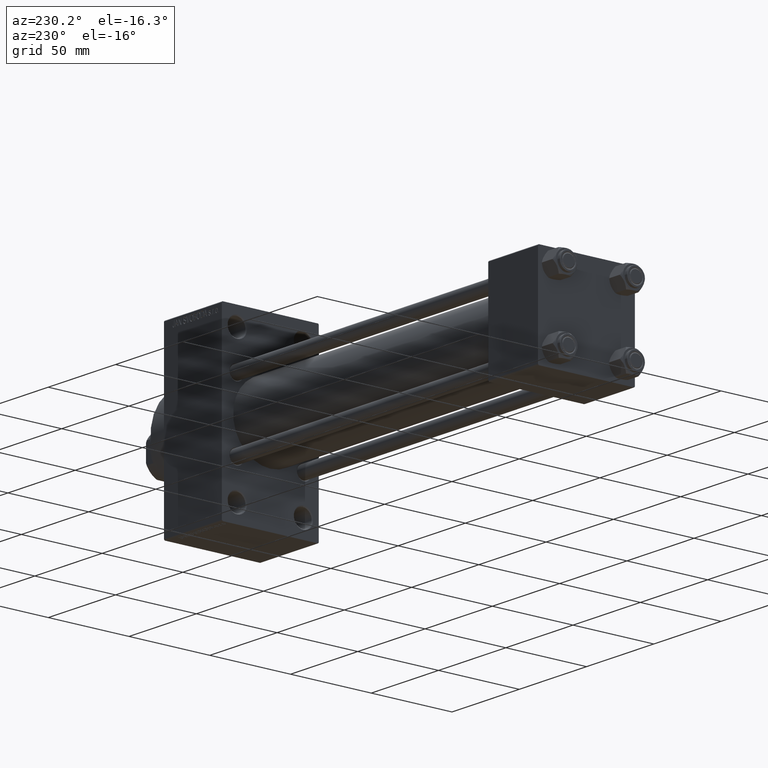
[diagram: clean part render]
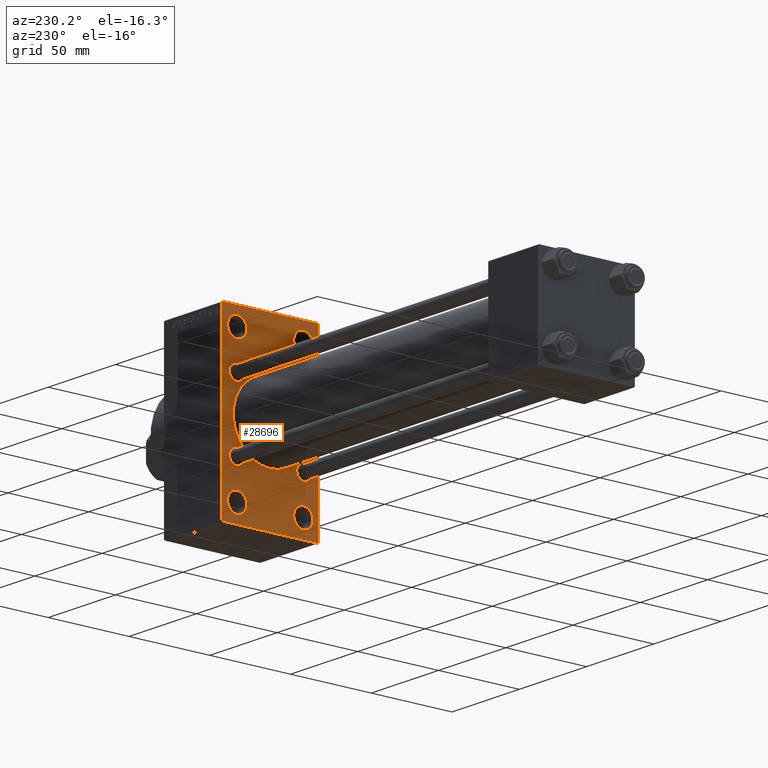
[diagram: same view with one face highlighted and labeled with its STEP entity id]
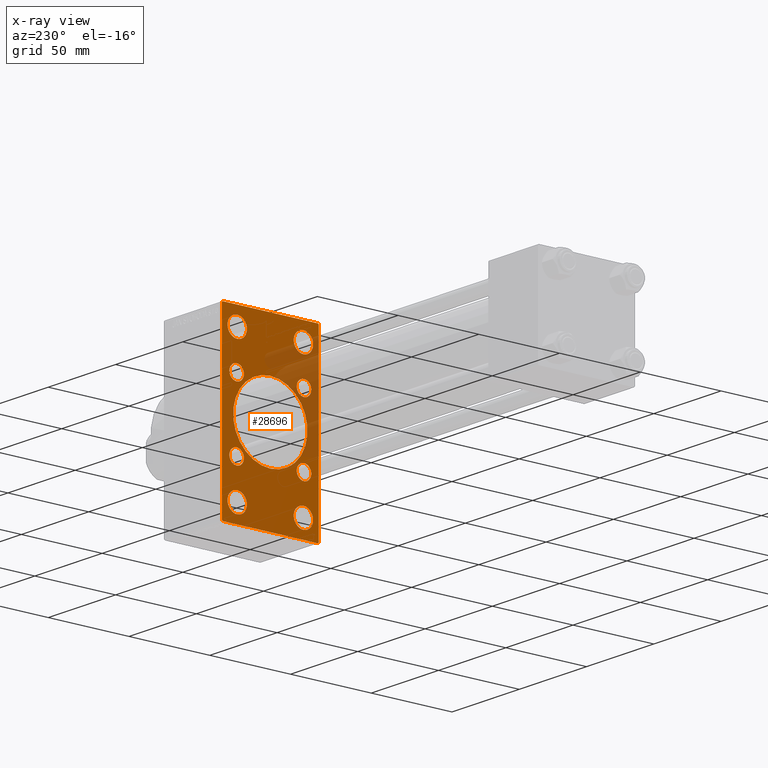
[diagram: x-ray of the same camera — body ghosted, the highlighted face saturated]
A machine part, auxiliary view. The second image highlights one B-rep face of the part: STEP entity #28696.
The next image is the same camera in x-ray: the body ghosted, the highlighted face saturated — about 19% of this face is hidden behind the body in this view.
In plain terms, the highlighted planar face has unit normal (-1, 0, 0).
Its self-contained STEP definition (entity closure, byte-faithful):
#89 = VECTOR ( 'NONE', #35444, 1000.000000000000114 ) ;
#123 = VECTOR ( 'NONE', #33211, 1000.000000000000000 ) ;
#414 = PLANE ( 'NONE',  #434 ) ;
#431 = CIRCLE ( 'NONE', #9607, 5.999999999999838352 ) ;
#434 = AXIS2_PLACEMENT_3D ( 'NONE', #18671, #15781, #33338 ) ;
#529 = CARTESIAN_POINT ( 'NONE',  ( 235.0000000000000284, 20.84999999999999787, -20.85000000000000142 ) ) ;
#556 = EDGE_CURVE ( 'NONE', #16464, #14890, #29480, .T. ) ;
#731 = VERTEX_POINT ( 'NONE', #41158 ) ;
#792 = CARTESIAN_POINT ( 'NONE',  ( 235.0000000000000284, -20.50000000000000000, 49.49999999999983658 ) ) ;
#844 = CARTESIAN_POINT ( 'NONE',  ( 235.0000000000000284, -30.00000000000000000, 54.50000000000000000 ) ) ;
#878 = CIRCLE ( 'NONE', #14709, 5.999999999999838352 ) ;
#881 = FACE_BOUND ( 'NONE', #45791, .T. ) ;
#893 = CARTESIAN_POINT ( 'NONE',  ( 235.0000000000000284, -20.50000000000000000, -49.49999999999983658 ) ) ;
#1119 = FACE_BOUND ( 'NONE', #2029, .T. ) ;
#1318 = ORIENTED_EDGE ( 'NONE', *, *, #15104, .T. ) ;
#1512 = DIRECTION ( 'NONE',  ( 0.000000000000000000, 0.000000000000000000, 1.000000000000000000 ) ) ;
#1780 = CARTESIAN_POINT ( 'NONE',  ( 235.0000000000000284, 29.49999999999996803, 54.49999999999999289 ) ) ;
#1851 = VERTEX_POINT ( 'NONE', #47108 ) ;
#1934 = EDGE_CURVE ( 'NONE', #2818, #12802, #26187, .T. ) ;
#1978 = ORIENTED_EDGE ( 'NONE', *, *, #8949, .T. ) ;
#2029 = EDGE_LOOP ( 'NONE', ( #7077, #12477 ) ) ;
#2465 = DIRECTION ( 'NONE',  ( 0.000000000000000000, 0.000000000000000000, 1.000000000000000000 ) ) ;
#2818 = VERTEX_POINT ( 'NONE', #46472 ) ;
#3282 = CIRCLE ( 'NONE', #30138, 4.500000000000007105 ) ;
#3403 = VERTEX_POINT ( 'NONE', #893 ) ;
#3422 = CIRCLE ( 'NONE', #14917, 5.999999999999838352 ) ;
#3456 = ORIENTED_EDGE ( 'NONE', *, *, #13628, .T. ) ;
#3668 = DIRECTION ( 'NONE',  ( 0.000000000000000000, 0.000000000000000000, 1.000000000000000000 ) ) ;
#3951 = ORIENTED_EDGE ( 'NONE', *, *, #33215, .T. ) ;
#4037 = AXIS2_PLACEMENT_3D ( 'NONE', #40673, #10870, #3668 ) ;
#4160 = CARTESIAN_POINT ( 'NONE',  ( 235.0000000000000284, 29.49999999999999645, -54.49999999999999289 ) ) ;
#4201 = AXIS2_PLACEMENT_3D ( 'NONE', #14247, #39005, #46930 ) ;
#4487 = CARTESIAN_POINT ( 'NONE',  ( 235.0000000000000284, -2.602085213965210642E-15, 0.000000000000000000 ) ) ;
#4591 = CARTESIAN_POINT ( 'NONE',  ( 235.0000000000000284, -20.50000000000000000, 37.50000000000015632 ) ) ;
#4868 = EDGE_CURVE ( 'NONE', #37051, #731, #6956, .T. ) ;
#5796 = CARTESIAN_POINT ( 'NONE',  ( 235.0000000000000284, 20.50000000000000000, -37.50000000000015632 ) ) ;
#6034 = CARTESIAN_POINT ( 'NONE',  ( 235.0000000000000284, -20.84999999999999076, -20.85000000000000497 ) ) ;
#6067 = DIRECTION ( 'NONE',  ( 1.000000000000000000, -0.000000000000000000, 0.000000000000000000 ) ) ;
#6589 = VERTEX_POINT ( 'NONE', #4591 ) ;
#6956 = LINE ( 'NONE', #21853, #14479 ) ;
#7025 = CARTESIAN_POINT ( 'NONE',  ( 235.0000000000000284, -20.84999999999999076, 20.85000000000000497 ) ) ;
#7077 = ORIENTED_EDGE ( 'NONE', *, *, #46556, .T. ) ;
#7103 = LINE ( 'NONE', #844, #34938 ) ;
#7375 = DIRECTION ( 'NONE',  ( 0.000000000000000000, 0.000000000000000000, 1.000000000000000000 ) ) ;
#7441 = CARTESIAN_POINT ( 'NONE',  ( 235.0000000000000284, 42.00000000000081002, -41.99999999999847233 ) ) ;
#7579 = DIRECTION ( 'NONE',  ( 0.000000000000000000, 0.000000000000000000, -1.000000000000000000 ) ) ;
#7606 = VERTEX_POINT ( 'NONE', #20913 ) ;
#7874 = CIRCLE ( 'NONE', #42382, 4.500000000000007105 ) ;
#8620 = VERTEX_POINT ( 'NONE', #20924 ) ;
#8940 = DIRECTION ( 'NONE',  ( 1.000000000000000000, -0.000000000000000000, 0.000000000000000000 ) ) ;
#8949 = EDGE_CURVE ( 'NONE', #38191, #2818, #38902, .T. ) ;
#9177 = VECTOR ( 'NONE', #32315, 1000.000000000000000 ) ;
#9308 = VERTEX_POINT ( 'NONE', #39077 ) ;
#9370 = DIRECTION ( 'NONE',  ( 0.000000000000000000, 0.000000000000000000, 1.000000000000000000 ) ) ;
#9458 = VERTEX_POINT ( 'NONE', #1780 ) ;
#9607 = AXIS2_PLACEMENT_3D ( 'NONE', #22544, #33125, #21833 ) ;
#9667 = CARTESIAN_POINT ( 'NONE',  ( 235.0000000000000284, -20.50000000000000000, -43.50000000000000000 ) ) ;
#9691 = CARTESIAN_POINT ( 'NONE',  ( 235.0000000000000284, -20.50000000000000000, -37.50000000000015632 ) ) ;
#9712 = CIRCLE ( 'NONE', #35810, 23.00000000000000000 ) ;
#9713 = CARTESIAN_POINT ( 'NONE',  ( 235.0000000000000284, 29.99999999999999645, 54.49999999999999289 ) ) ;
#9855 = EDGE_CURVE ( 'NONE', #11321, #15806, #33730, .T. ) ;
#10256 = ORIENTED_EDGE ( 'NONE', *, *, #26453, .T. ) ;
#10870 = DIRECTION ( 'NONE',  ( 1.000000000000000000, -0.000000000000000000, 0.000000000000000000 ) ) ;
#10894 = CARTESIAN_POINT ( 'NONE',  ( 235.0000000000000284, 20.50000000000000000, -49.49999999999983658 ) ) ;
#11236 = EDGE_CURVE ( 'NONE', #9458, #37360, #35923, .T. ) ;
#11278 = CARTESIAN_POINT ( 'NONE',  ( 235.0000000000000284, 20.50000000000000000, -43.50000000000000000 ) ) ;
#11321 = VERTEX_POINT ( 'NONE', #18587 ) ;
#11686 = CIRCLE ( 'NONE', #4037, 5.999999999999838352 ) ;
#12001 = ORIENTED_EDGE ( 'NONE', *, *, #18113, .T. ) ;
#12395 = FACE_BOUND ( 'NONE', #15535, .T. ) ;
#12477 = ORIENTED_EDGE ( 'NONE', *, *, #556, .T. ) ;
#12802 = VERTEX_POINT ( 'NONE', #4160 ) ;
#12973 = DIRECTION ( 'NONE',  ( 1.000000000000000000, -0.000000000000000000, 0.000000000000000000 ) ) ;
#13485 = CARTESIAN_POINT ( 'NONE',  ( 235.0000000000000284, -2.602085213965210642E-15, 23.00000000000000000 ) ) ;
#13628 = EDGE_CURVE ( 'NONE', #3403, #46364, #16937, .T. ) ;
#14000 = EDGE_CURVE ( 'NONE', #9458, #38191, #41219, .T. ) ;
#14247 = CARTESIAN_POINT ( 'NONE',  ( 235.0000000000000284, -20.84999999999999076, 20.85000000000000497 ) ) ;
#14258 = ORIENTED_EDGE ( 'NONE', *, *, #15639, .T. ) ;
#14275 = DIRECTION ( 'NONE',  ( 0.000000000000000000, 0.000000000000000000, 1.000000000000000000 ) ) ;
#14479 = VECTOR ( 'NONE', #47089, 1000.000000000000000 ) ;
#14651 = DIRECTION ( 'NONE',  ( 1.000000000000000000, -0.000000000000000000, 0.000000000000000000 ) ) ;
#14709 = AXIS2_PLACEMENT_3D ( 'NONE', #9667, #6067, #1512 ) ;
#14890 = VERTEX_POINT ( 'NONE', #38572 ) ;
#14917 = AXIS2_PLACEMENT_3D ( 'NONE', #15049, #8940, #22486 ) ;
#15049 = CARTESIAN_POINT ( 'NONE',  ( 235.0000000000000284, 20.50000000000000000, 43.50000000000000000 ) ) ;
#15104 = EDGE_CURVE ( 'NONE', #46364, #3403, #878, .T. ) ;
#15192 = CARTESIAN_POINT ( 'NONE',  ( 235.0000000000000284, -20.84999999999999076, -25.35000000000001208 ) ) ;
#15535 = EDGE_LOOP ( 'NONE', ( #33558, #12001 ) ) ;
#15542 = FACE_BOUND ( 'NONE', #45044, .T. ) ;
#15568 = VERTEX_POINT ( 'NONE', #22390 ) ;
#15577 = CARTESIAN_POINT ( 'NONE',  ( 235.0000000000000284, -20.50000000000000000, -43.50000000000000000 ) ) ;
#15617 = EDGE_CURVE ( 'NONE', #15806, #11321, #41555, .T. ) ;
#15639 = EDGE_CURVE ( 'NONE', #12802, #37051, #26003, .T. ) ;
#15731 = AXIS2_PLACEMENT_3D ( 'NONE', #41902, #23401, #20503 ) ;
#15781 = DIRECTION ( 'NONE',  ( -1.000000000000000000, 0.000000000000000000, -0.000000000000000000 ) ) ;
#15806 = VERTEX_POINT ( 'NONE', #19139 ) ;
#16139 = DIRECTION ( 'NONE',  ( 0.000000000000000000, 0.000000000000000000, 1.000000000000000000 ) ) ;
#16220 = CARTESIAN_POINT ( 'NONE',  ( 235.0000000000000284, 41.99999999999997158, 41.99999999999997158 ) ) ;
#16464 = VERTEX_POINT ( 'NONE', #15192 ) ;
#16517 = CIRCLE ( 'NONE', #15731, 23.00000000000000000 ) ;
#16554 = DIRECTION ( 'NONE',  ( 0.000000000000000000, 0.000000000000000000, -1.000000000000000000 ) ) ;
#16758 = CARTESIAN_POINT ( 'NONE',  ( 235.0000000000000284, 2.146024240737016609E-16, -23.00000000000000000 ) ) ;
#16937 = CIRCLE ( 'NONE', #35370, 5.999999999999838352 ) ;
#17002 = AXIS2_PLACEMENT_3D ( 'NONE', #529, #30075, #26480 ) ;
#17290 = ORIENTED_EDGE ( 'NONE', *, *, #43341, .T. ) ;
#17305 = EDGE_CURVE ( 'NONE', #6589, #24493, #11686, .T. ) ;
#18113 = EDGE_CURVE ( 'NONE', #15568, #39736, #3282, .T. ) ;
#18587 = CARTESIAN_POINT ( 'NONE',  ( 235.0000000000000284, 20.84999999999999787, -25.35000000000000853 ) ) ;
#18671 = CARTESIAN_POINT ( 'NONE',  ( 235.0000000000000284, 0.000000000000000000, 0.000000000000000000 ) ) ;
#18947 = DIRECTION ( 'NONE',  ( 1.000000000000000000, -0.000000000000000000, 0.000000000000000000 ) ) ;
#19139 = CARTESIAN_POINT ( 'NONE',  ( 235.0000000000000284, 20.84999999999999787, -16.34999999999999432 ) ) ;
#19486 = CARTESIAN_POINT ( 'NONE',  ( 235.0000000000000284, 29.99999999999999645, -54.49999999999999289 ) ) ;
#19610 = FACE_BOUND ( 'NONE', #21577, .T. ) ;
#19969 = CARTESIAN_POINT ( 'NONE',  ( 235.0000000000000284, -29.50000000000000355, 54.50000000000000000 ) ) ;
#20461 = CARTESIAN_POINT ( 'NONE',  ( 235.0000000000000284, 29.99999999999999645, 53.99999999999996447 ) ) ;
#20503 = DIRECTION ( 'NONE',  ( 0.000000000000000000, 0.000000000000000000, -1.000000000000000000 ) ) ;
#20624 = EDGE_LOOP ( 'NONE', ( #3951, #45495 ) ) ;
#20904 = AXIS2_PLACEMENT_3D ( 'NONE', #7025, #28661, #2465 ) ;
#20913 = CARTESIAN_POINT ( 'NONE',  ( 235.0000000000000284, -30.00000000000000000, 53.99999999999997158 ) ) ;
#20924 = CARTESIAN_POINT ( 'NONE',  ( 235.0000000000000284, -20.84999999999999076, 25.35000000000001208 ) ) ;
#20946 = CIRCLE ( 'NONE', #37083, 5.999999999999838352 ) ;
#21577 = EDGE_LOOP ( 'NONE', ( #34813, #26996 ) ) ;
#21833 = DIRECTION ( 'NONE',  ( 0.000000000000000000, 0.000000000000000000, 1.000000000000000000 ) ) ;
#21853 = CARTESIAN_POINT ( 'NONE',  ( 235.0000000000000284, -42.00000000000052580, -41.99999999999906919 ) ) ;
#22030 = CIRCLE ( 'NONE', #27392, 4.500000000000007105 ) ;
#22082 = EDGE_LOOP ( 'NONE', ( #1318, #3456 ) ) ;
#22086 = VECTOR ( 'NONE', #32926, 1000.000000000000000 ) ;
#22359 = EDGE_CURVE ( 'NONE', #1851, #9308, #3422, .T. ) ;
#22390 = CARTESIAN_POINT ( 'NONE',  ( 235.0000000000000284, 20.84999999999999787, 16.34999999999999432 ) ) ;
#22486 = DIRECTION ( 'NONE',  ( 0.000000000000000000, 0.000000000000000000, 1.000000000000000000 ) ) ;
#22544 = CARTESIAN_POINT ( 'NONE',  ( 235.0000000000000284, -20.50000000000000000, 43.50000000000000000 ) ) ;
#22756 = FACE_BOUND ( 'NONE', #23622, .T. ) ;
#23396 = ORIENTED_EDGE ( 'NONE', *, *, #14000, .T. ) ;
#23401 = DIRECTION ( 'NONE',  ( 1.000000000000000000, 0.000000000000000000, 0.000000000000000000 ) ) ;
#23448 = VECTOR ( 'NONE', #24352, 1000.000000000000114 ) ;
#23622 = EDGE_LOOP ( 'NONE', ( #17290, #25190 ) ) ;
#23999 = CARTESIAN_POINT ( 'NONE',  ( 235.0000000000000284, 29.99999999999999645, 54.49999999999999289 ) ) ;
#24352 = DIRECTION ( 'NONE',  ( -0.000000000000000000, 0.7071067811865253683, 0.7071067811865696662 ) ) ;
#24474 = EDGE_LOOP ( 'NONE', ( #44355, #10256 ) ) ;
#24493 = VERTEX_POINT ( 'NONE', #792 ) ;
#24598 = VECTOR ( 'NONE', #16554, 1000.000000000000000 ) ;
#24754 = CIRCLE ( 'NONE', #38576, 5.999999999999838352 ) ;
#24898 = DIRECTION ( 'NONE',  ( 0.000000000000000000, 0.000000000000000000, 1.000000000000000000 ) ) ;
#25190 = ORIENTED_EDGE ( 'NONE', *, *, #17305, .T. ) ;
#25552 = DIRECTION ( 'NONE',  ( 1.000000000000000000, -0.000000000000000000, 0.000000000000000000 ) ) ;
#26003 = LINE ( 'NONE', #19486, #123 ) ;
#26079 = EDGE_CURVE ( 'NONE', #36005, #8620, #41007, .T. ) ;
#26187 = LINE ( 'NONE', #7441, #22086 ) ;
#26400 = DIRECTION ( 'NONE',  ( 0.000000000000000000, 0.000000000000000000, 1.000000000000000000 ) ) ;
#26453 = EDGE_CURVE ( 'NONE', #44982, #29262, #38716, .T. ) ;
#26480 = DIRECTION ( 'NONE',  ( 0.000000000000000000, 0.000000000000000000, 1.000000000000000000 ) ) ;
#26852 = EDGE_CURVE ( 'NONE', #36566, #34120, #16517, .T. ) ;
#26996 = ORIENTED_EDGE ( 'NONE', *, *, #26079, .T. ) ;
#27063 = FACE_OUTER_BOUND ( 'NONE', #38097, .T. ) ;
#27392 = AXIS2_PLACEMENT_3D ( 'NONE', #6034, #31514, #16139 ) ;
#27483 = CARTESIAN_POINT ( 'NONE',  ( 235.0000000000000284, 20.84999999999999787, 25.35000000000000853 ) ) ;
#28661 = DIRECTION ( 'NONE',  ( 1.000000000000000000, -0.000000000000000000, 0.000000000000000000 ) ) ;
#28696 = ADVANCED_FACE ( 'NONE', ( #22756, #30439, #30663, #37422, #19610, #12395, #881, #1119, #15542, #27063 ), #414, .T. ) ;
#29262 = VERTEX_POINT ( 'NONE', #5796 ) ;
#29480 = CIRCLE ( 'NONE', #37183, 4.500000000000007105 ) ;
#29701 = CARTESIAN_POINT ( 'NONE',  ( 235.0000000000000284, -20.84999999999999076, 16.34999999999999787 ) ) ;
#29898 = ORIENTED_EDGE ( 'NONE', *, *, #26852, .T. ) ;
#29969 = DIRECTION ( 'NONE',  ( 1.000000000000000000, 0.000000000000000000, 0.000000000000000000 ) ) ;
#30075 = DIRECTION ( 'NONE',  ( 1.000000000000000000, -0.000000000000000000, 0.000000000000000000 ) ) ;
#30110 = ORIENTED_EDGE ( 'NONE', *, *, #39780, .T. ) ;
#30138 = AXIS2_PLACEMENT_3D ( 'NONE', #36434, #39310, #24898 ) ;
#30439 = FACE_BOUND ( 'NONE', #22082, .T. ) ;
#30663 = FACE_BOUND ( 'NONE', #24474, .T. ) ;
#30845 = LINE ( 'NONE', #34933, #23448 ) ;
#31514 = DIRECTION ( 'NONE',  ( 1.000000000000000000, -0.000000000000000000, 0.000000000000000000 ) ) ;
#31808 = CARTESIAN_POINT ( 'NONE',  ( 235.0000000000000284, -29.50000000000002842, -54.50000000000000000 ) ) ;
#31921 = EDGE_CURVE ( 'NONE', #39736, #15568, #7874, .T. ) ;
#32315 = DIRECTION ( 'NONE',  ( 0.000000000000000000, -1.000000000000000000, 1.156482317317871478E-16 ) ) ;
#32470 = EDGE_CURVE ( 'NONE', #8620, #36005, #43178, .T. ) ;
#32628 = DIRECTION ( 'NONE',  ( 1.000000000000000000, -0.000000000000000000, 0.000000000000000000 ) ) ;
#32777 = EDGE_CURVE ( 'NONE', #29262, #44982, #24754, .T. ) ;
#32926 = DIRECTION ( 'NONE',  ( -0.000000000000000000, -0.7071067811865279218, -0.7071067811865672237 ) ) ;
#33099 = ORIENTED_EDGE ( 'NONE', *, *, #4868, .T. ) ;
#33125 = DIRECTION ( 'NONE',  ( 1.000000000000000000, -0.000000000000000000, 0.000000000000000000 ) ) ;
#33211 = DIRECTION ( 'NONE',  ( 0.000000000000000000, -1.000000000000000000, -1.156482317317871478E-16 ) ) ;
#33215 = EDGE_CURVE ( 'NONE', #9308, #1851, #20946, .T. ) ;
#33338 = DIRECTION ( 'NONE',  ( -0.000000000000000000, 0.000000000000000000, 1.000000000000000000 ) ) ;
#33558 = ORIENTED_EDGE ( 'NONE', *, *, #31921, .T. ) ;
#33730 = CIRCLE ( 'NONE', #36036, 4.500000000000007105 ) ;
#34120 = VERTEX_POINT ( 'NONE', #13485 ) ;
#34813 = ORIENTED_EDGE ( 'NONE', *, *, #32470, .T. ) ;
#34933 = CARTESIAN_POINT ( 'NONE',  ( 235.0000000000000284, -42.00000000000091660, 41.99999999999829470 ) ) ;
#34938 = VECTOR ( 'NONE', #7579, 1000.000000000000000 ) ;
#35306 = ORIENTED_EDGE ( 'NONE', *, *, #9855, .T. ) ;
#35370 = AXIS2_PLACEMENT_3D ( 'NONE', #15577, #18947, #26400 ) ;
#35444 = DIRECTION ( 'NONE',  ( 0.000000000000000000, 0.7071067811865474617, -0.7071067811865474617 ) ) ;
#35488 = ORIENTED_EDGE ( 'NONE', *, *, #15617, .T. ) ;
#35581 = ORIENTED_EDGE ( 'NONE', *, *, #45917, .T. ) ;
#35810 = AXIS2_PLACEMENT_3D ( 'NONE', #4487, #29969, #45107 ) ;
#35923 = LINE ( 'NONE', #9713, #9177 ) ;
#36005 = VERTEX_POINT ( 'NONE', #29701 ) ;
#36036 = AXIS2_PLACEMENT_3D ( 'NONE', #42268, #41553, #38431 ) ;
#36434 = CARTESIAN_POINT ( 'NONE',  ( 235.0000000000000284, 20.84999999999999787, 20.85000000000000142 ) ) ;
#36566 = VERTEX_POINT ( 'NONE', #16758 ) ;
#37002 = DIRECTION ( 'NONE',  ( 0.000000000000000000, 0.000000000000000000, 1.000000000000000000 ) ) ;
#37051 = VERTEX_POINT ( 'NONE', #31808 ) ;
#37083 = AXIS2_PLACEMENT_3D ( 'NONE', #43907, #32628, #7375 ) ;
#37183 = AXIS2_PLACEMENT_3D ( 'NONE', #42863, #25552, #14275 ) ;
#37339 = ORIENTED_EDGE ( 'NONE', *, *, #41771, .F. ) ;
#37360 = VERTEX_POINT ( 'NONE', #19969 ) ;
#37422 = FACE_BOUND ( 'NONE', #20624, .T. ) ;
#37423 = ORIENTED_EDGE ( 'NONE', *, *, #11236, .F. ) ;
#38097 = EDGE_LOOP ( 'NONE', ( #14258, #33099, #37339, #30110, #37423, #23396, #1978, #41845 ) ) ;
#38191 = VERTEX_POINT ( 'NONE', #20461 ) ;
#38431 = DIRECTION ( 'NONE',  ( 0.000000000000000000, 0.000000000000000000, 1.000000000000000000 ) ) ;
#38572 = CARTESIAN_POINT ( 'NONE',  ( 235.0000000000000284, -20.84999999999999076, -16.34999999999999787 ) ) ;
#38576 = AXIS2_PLACEMENT_3D ( 'NONE', #45928, #41354, #9370 ) ;
#38697 = CARTESIAN_POINT ( 'NONE',  ( 235.0000000000000284, 20.84999999999999787, 20.85000000000000142 ) ) ;
#38716 = CIRCLE ( 'NONE', #41791, 5.999999999999838352 ) ;
#38902 = LINE ( 'NONE', #23999, #24598 ) ;
#39005 = DIRECTION ( 'NONE',  ( 1.000000000000000000, -0.000000000000000000, 0.000000000000000000 ) ) ;
#39077 = CARTESIAN_POINT ( 'NONE',  ( 235.0000000000000284, 20.50000000000000000, 49.49999999999983658 ) ) ;
#39310 = DIRECTION ( 'NONE',  ( 1.000000000000000000, -0.000000000000000000, 0.000000000000000000 ) ) ;
#39736 = VERTEX_POINT ( 'NONE', #27483 ) ;
#39780 = EDGE_CURVE ( 'NONE', #7606, #37360, #30845, .T. ) ;
#40673 = CARTESIAN_POINT ( 'NONE',  ( 235.0000000000000284, -20.50000000000000000, 43.50000000000000000 ) ) ;
#41007 = CIRCLE ( 'NONE', #4201, 4.500000000000007105 ) ;
#41158 = CARTESIAN_POINT ( 'NONE',  ( 235.0000000000000284, -30.00000000000000000, -54.00000000000001421 ) ) ;
#41219 = LINE ( 'NONE', #16220, #89 ) ;
#41354 = DIRECTION ( 'NONE',  ( 1.000000000000000000, -0.000000000000000000, 0.000000000000000000 ) ) ;
#41553 = DIRECTION ( 'NONE',  ( 1.000000000000000000, -0.000000000000000000, 0.000000000000000000 ) ) ;
#41555 = CIRCLE ( 'NONE', #17002, 4.500000000000007105 ) ;
#41771 = EDGE_CURVE ( 'NONE', #7606, #731, #7103, .T. ) ;
#41791 = AXIS2_PLACEMENT_3D ( 'NONE', #11278, #14651, #37002 ) ;
#41845 = ORIENTED_EDGE ( 'NONE', *, *, #1934, .T. ) ;
#41902 = CARTESIAN_POINT ( 'NONE',  ( 235.0000000000000284, -2.602085213965210642E-15, 0.000000000000000000 ) ) ;
#42268 = CARTESIAN_POINT ( 'NONE',  ( 235.0000000000000284, 20.84999999999999787, -20.85000000000000142 ) ) ;
#42382 = AXIS2_PLACEMENT_3D ( 'NONE', #38697, #12973, #47039 ) ;
#42863 = CARTESIAN_POINT ( 'NONE',  ( 235.0000000000000284, -20.84999999999999076, -20.85000000000000497 ) ) ;
#43178 = CIRCLE ( 'NONE', #20904, 4.500000000000007105 ) ;
#43341 = EDGE_CURVE ( 'NONE', #24493, #6589, #431, .T. ) ;
#43907 = CARTESIAN_POINT ( 'NONE',  ( 235.0000000000000284, 20.50000000000000000, 43.50000000000000000 ) ) ;
#44355 = ORIENTED_EDGE ( 'NONE', *, *, #32777, .T. ) ;
#44982 = VERTEX_POINT ( 'NONE', #10894 ) ;
#45044 = EDGE_LOOP ( 'NONE', ( #35581, #29898 ) ) ;
#45107 = DIRECTION ( 'NONE',  ( 0.000000000000000000, 0.000000000000000000, -1.000000000000000000 ) ) ;
#45495 = ORIENTED_EDGE ( 'NONE', *, *, #22359, .T. ) ;
#45791 = EDGE_LOOP ( 'NONE', ( #35488, #35306 ) ) ;
#45917 = EDGE_CURVE ( 'NONE', #34120, #36566, #9712, .T. ) ;
#45928 = CARTESIAN_POINT ( 'NONE',  ( 235.0000000000000284, 20.50000000000000000, -43.50000000000000000 ) ) ;
#46364 = VERTEX_POINT ( 'NONE', #9691 ) ;
#46472 = CARTESIAN_POINT ( 'NONE',  ( 235.0000000000000284, 29.99999999999999645, -53.99999999999996447 ) ) ;
#46556 = EDGE_CURVE ( 'NONE', #14890, #16464, #22030, .T. ) ;
#46930 = DIRECTION ( 'NONE',  ( 0.000000000000000000, 0.000000000000000000, 1.000000000000000000 ) ) ;
#47039 = DIRECTION ( 'NONE',  ( 0.000000000000000000, 0.000000000000000000, 1.000000000000000000 ) ) ;
#47089 = DIRECTION ( 'NONE',  ( 0.000000000000000000, -0.7071067811865352493, 0.7071067811865597852 ) ) ;
#47108 = CARTESIAN_POINT ( 'NONE',  ( 235.0000000000000284, 20.50000000000000000, 37.50000000000015632 ) ) ;